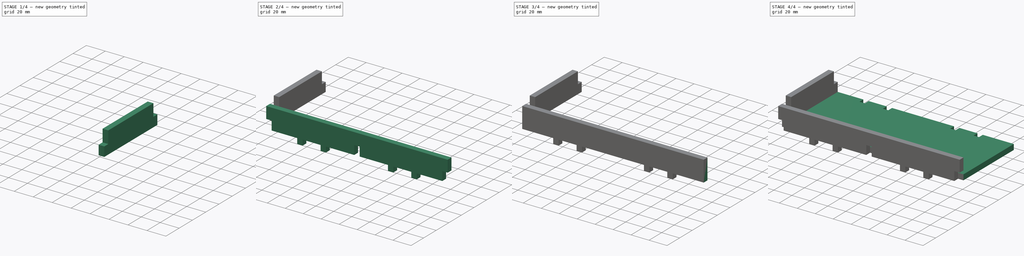
[diagram: build sequence overview — one tinted view per stage of 4, left to right]
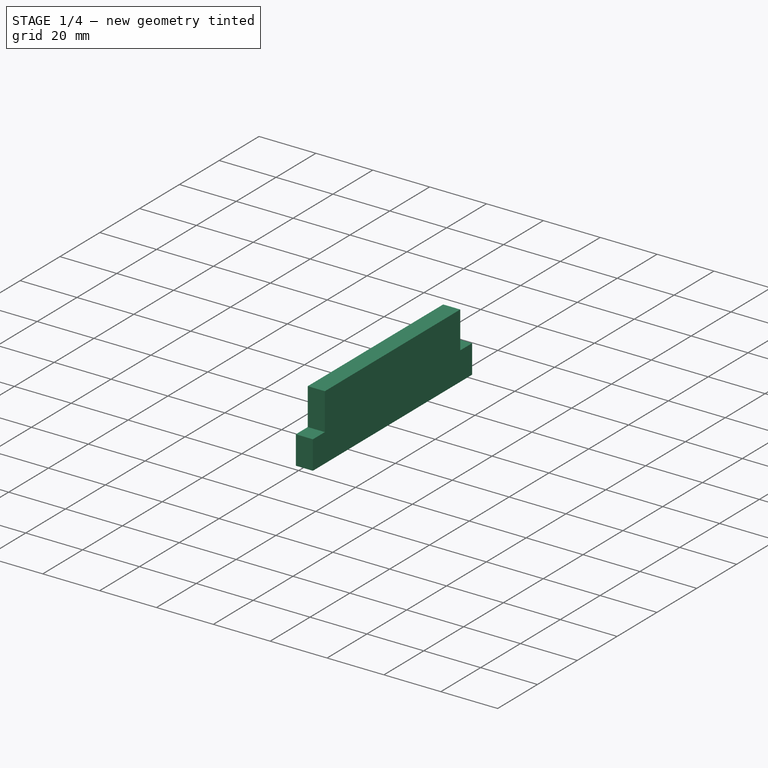
[diagram: stage 1 of 4 — iso view after this stage's code; geometry added in this stage tinted green]
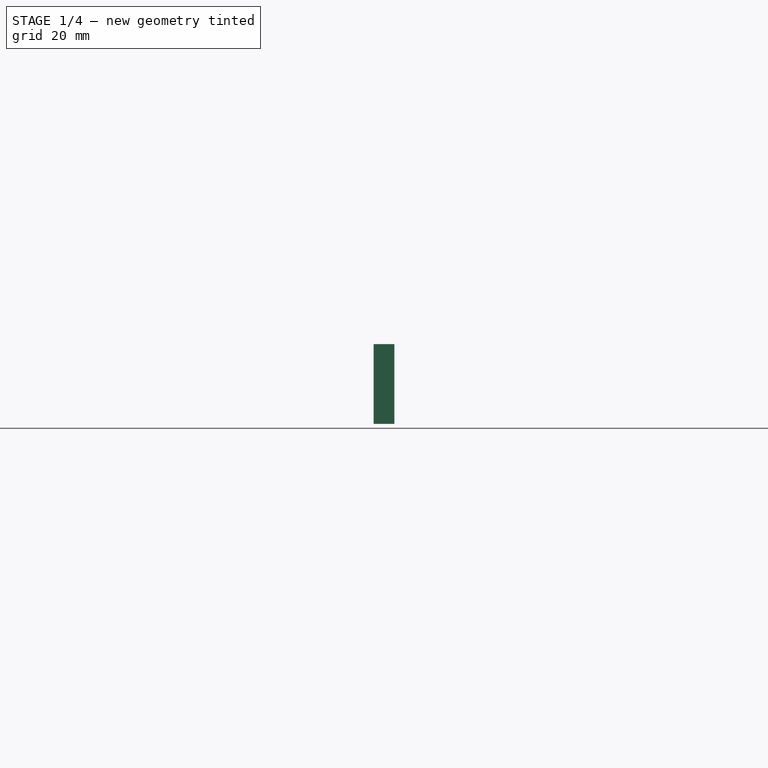
[diagram: stage 1 of 4 — front view after this stage's code; geometry added in this stage tinted green]
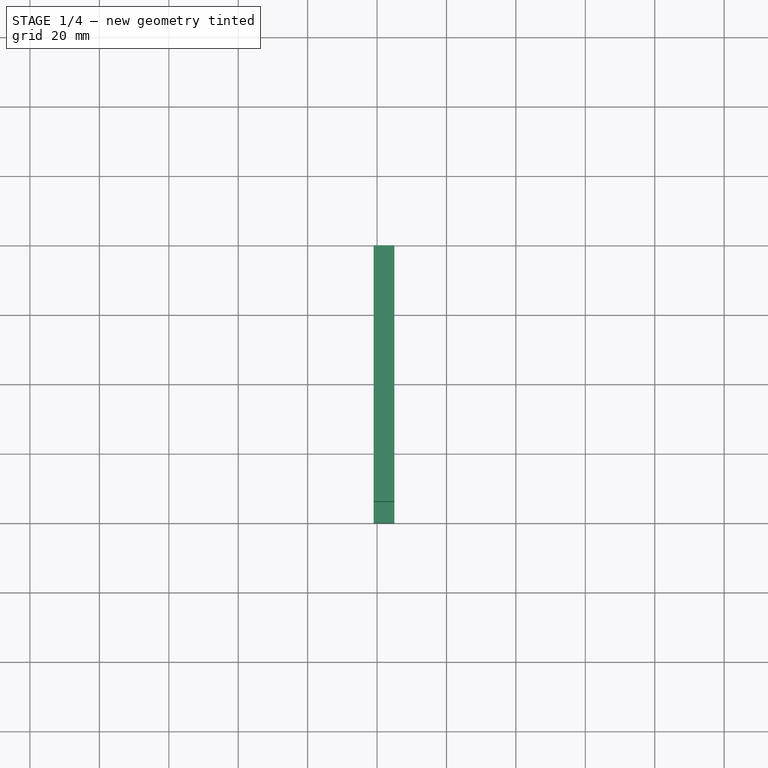
[diagram: stage 1 of 4 — top view after this stage's code; geometry added in this stage tinted green]
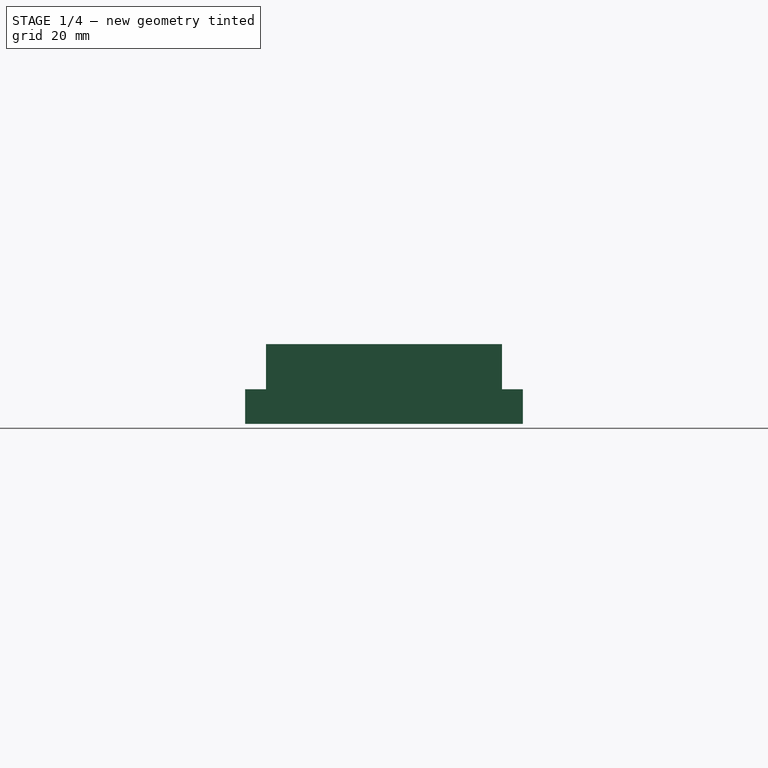
[diagram: stage 1 of 4 — right view after this stage's code; geometry added in this stage tinted green]
FCSTD DOCUMENT  (FreeCAD 0.18R16146 (Git))
Label: brass birmingham card tray
License: All rights reserved
LicenseURL: http://en.wikipedia.org/wiki/All_rights_reserved
objects: Sketcher::SketchObject×9, TechDraw::DrawViewPart×8, PartDesign::Body×6, PartDesign::Pocket×5, PartDesign::Pad×4, Spreadsheet::Sheet×2, PartDesign::FeatureBase×2, App::DocumentObjectGroup×2, TechDraw::DrawSVGTemplate×2, TechDraw::DrawPage×2
note: 35 computed .brp shape members not serialized (recipe doc carries the construction recipe); baked Part::Feature solids carry a one-line shape summary decoded from their .brp

FEATURE [PartDesign::Body] Body001  label="side long"
  Group = -> [Sketch001,Pad001,Sketch002,Pocket]
  Origin = -> Origin001
  Placement = pos=(0,6,6) rot=(0,0,1;0rad)
  Tip = -> Pocket
FEATURE [Sketcher::SketchObject] Sketch003
  MapMode = 5
  Placement = pos=(0,0,0) rot=(0.57735,0.57735,0.57735;2.0944rad)
  Support = -> [YZ_Plane003]
  expr: Constraints[9] = 29mm - my_variables.foam_width
  sketch-geometry (4):
    g0: LineSegment StartX=-40 StartY=23 StartZ=0 EndX=40 EndY=23 EndZ=0
    g1: LineSegment StartX=40 StartY=23 StartZ=0 EndX=40 EndY=0 EndZ=0
    g2: LineSegment StartX=40 StartY=0 StartZ=0 EndX=-40 EndY=0 EndZ=0
    g3: LineSegment StartX=-40 StartY=0 StartZ=0 EndX=-40 EndY=23 EndZ=0
  constraints (11):
    c: Coincident(g0,g1)
    c: Coincident(g1,g2)
    c: Coincident(g2,g3)
    c: Coincident(g3,g0)
    c: Horizontal(g0)
    c: Horizontal(g2)
    c: Vertical(g1)
    c: Vertical(g3)
    c: Distance(g0) = 80
    c: Distance(g1) = 23
    c: Symmetric(g2,g2,g-1)
FEATURE [PartDesign::Pad] Pad002
  Length = 6
  Length2 = 100
  Placement = pos=(0,0,0) rot=(0.57735,0.57735,0.57735;2.0944rad)
  Profile = -> Sketch003
  Type = 0
  expr: Length = my_variables.foam_width
FEATURE [Sketcher::SketchObject] Sketch004
  MapMode = 5
  Placement = pos=(6,-1.3e-15,1.3e-15) rot=(0.57735,0.57735,0.57735;2.0944rad)
  Support = -> [Pad002]
  expr: Constraints[30] = my_variables.foam_width
  expr: Constraints[29] = my_variables.foam_width
  expr: Constraints[9] = Sketch003.Constraints[9]
  expr: Constraints[8] = Sketch003.Constraints[8]
  sketch-geometry (12):
    g0: LineSegment [constr] StartX=-40 StartY=23 StartZ=0 EndX=40 EndY=23 EndZ=0
    g1: LineSegment [constr] StartX=40 StartY=23 StartZ=0 EndX=40 EndY=0 EndZ=0
    g2: LineSegment [constr] StartX=40 StartY=0 StartZ=0 EndX=-40 EndY=0 EndZ=0
    g3: LineSegment [constr] StartX=-40 StartY=0 StartZ=0 EndX=-40 EndY=23 EndZ=0
    g4: LineSegment StartX=-34 StartY=10 StartZ=0 EndX=-40 EndY=10 EndZ=0
    g5: LineSegment StartX=-40 StartY=10 StartZ=0 EndX=-40 EndY=23 EndZ=0
    g6: LineSegment StartX=-40 StartY=23 StartZ=0 EndX=-34 EndY=23 EndZ=0
    g7: LineSegment StartX=-34 StartY=23 StartZ=0 EndX=-34 EndY=10 EndZ=0
    g8: LineSegment StartX=34 StartY=23 StartZ=0 EndX=40 EndY=23 EndZ=0
    g9: LineSegment StartX=40 StartY=23 StartZ=0 EndX=40 EndY=10 EndZ=0
    g10: LineSegment StartX=40 StartY=10 StartZ=0 EndX=34 EndY=10 EndZ=0
    g11: LineSegment StartX=34 StartY=10 StartZ=0 EndX=34 EndY=23 EndZ=0
  constraints (33):
    c: Coincident(g0,g1)
    c: Coincident(g1,g2)
    c: Coincident(g2,g3)
    c: Coincident(g3,g0)
    c: Horizontal(g0)
    c: Horizontal(g2)
    c: Vertical(g1)
    c: Vertical(g3)
    c: Distance(g0) = 80
    c: Distance(g1) = 23
    c: Symmetric(g2,g2,g-1)
    c: Coincident(g4,g5)
    c: Coincident(g5,g6)
    c: Coincident(g6,g7)
    c: Coincident(g7,g4)
    c: Horizontal(g4)
    c: Horizontal(g6)
    c: Vertical(g5)
    c: Vertical(g7)
    c: Coincident(g8,g9)
    c: Coincident(g9,g10)
    c: Coincident(g10,g11)
    c: Coincident(g11,g8)
    c: Horizontal(g8)
    c: Horizontal(g10)
    c: Vertical(g9)
    c: Vertical(g11)
    c: Coincident(g8,g0)
    c: Coincident(g5,g0)
    c: Distance(g4) = 6
    c: Distance(g10) = 6
    c: Distance(g4,g2) = 10
    c: Distance(g9,g1) = 10
FEATURE [PartDesign::Pocket] Pocket001
  BaseFeature = -> Pad002
  Length = 5
  Length2 = 100
  Placement = pos=(0,0,0) rot=(0.57735,0.57735,0.57735;2.0944rad)
  Profile = -> Sketch004
  Type = 1
FEATURE [PartDesign::Body] Body004  label="side small - clone 1"
  BaseFeature = -> Body003
  Group = -> [Clone001]
  Origin = -> Origin004
  Placement = pos=(98,1.3e-14,4e-15) rot=(0,0,1;0rad)
  Tip = -> Clone001
FEATURE [PartDesign::FeatureBase] Clone002
  BaseFeature = -> Body003
  Placement = pos=(-101,40,6) rot=(0,0,1;0rad)
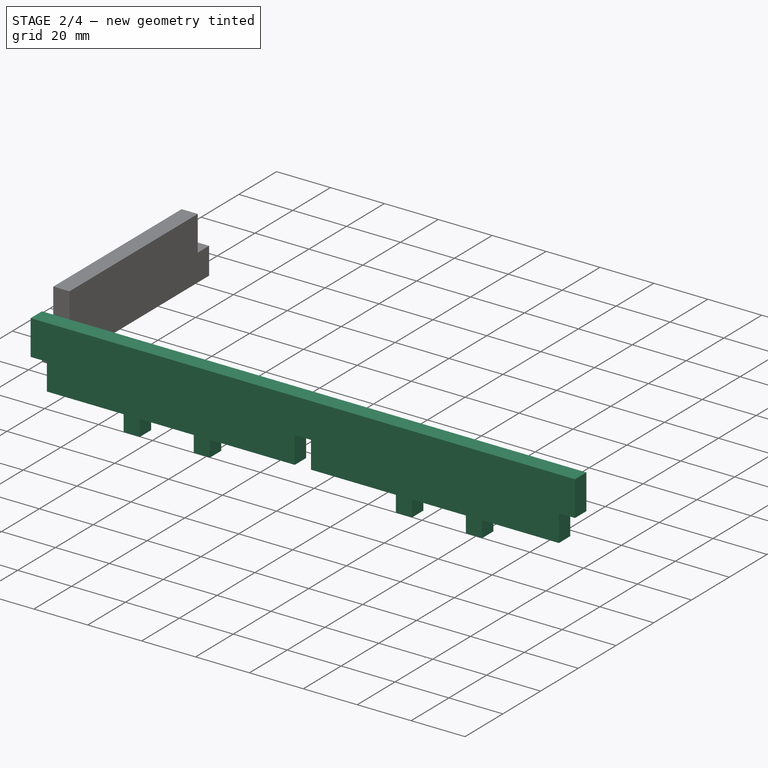
[diagram: stage 2 of 4 — iso view after this stage's code; geometry added in this stage tinted green]
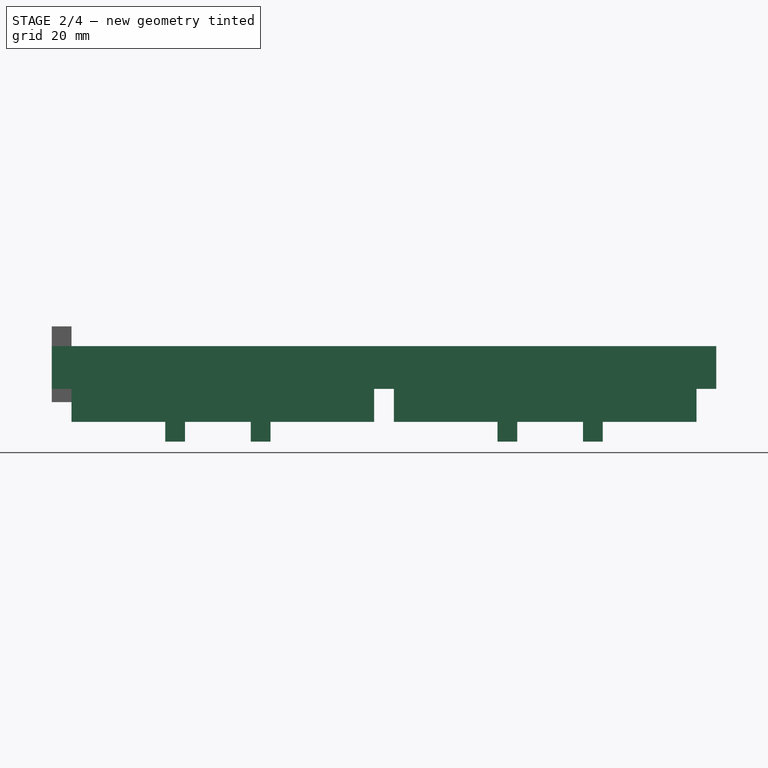
[diagram: stage 2 of 4 — front view after this stage's code; geometry added in this stage tinted green]
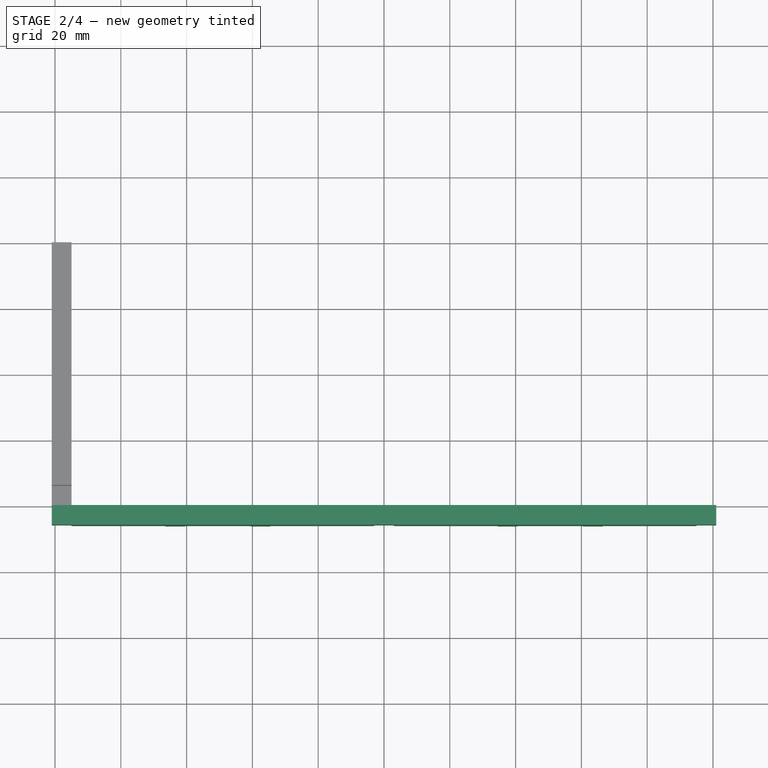
[diagram: stage 2 of 4 — top view after this stage's code; geometry added in this stage tinted green]
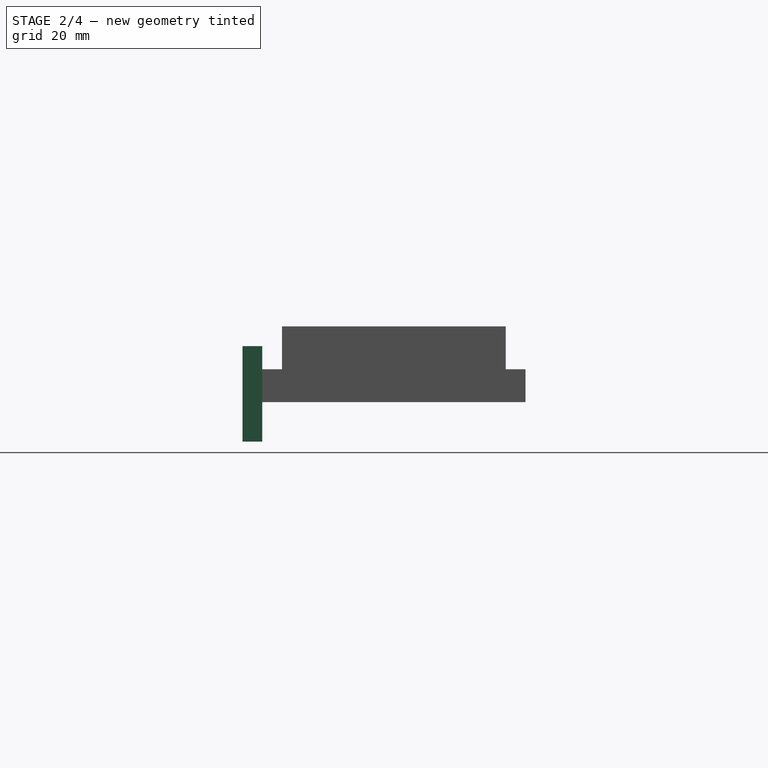
[diagram: stage 2 of 4 — right view after this stage's code; geometry added in this stage tinted green]
FEATURE [PartDesign::Body] Body003  label="side  small"
  Group = -> [Sketch003,Pad002,Sketch004,Pocket001]
  Origin = -> Origin003
  Placement = pos=(-101,40,6) rot=(0,0,1;0rad)
  Tip = -> Pocket001
FEATURE [PartDesign::FeatureBase] Clone001
  BaseFeature = -> Body003
  Placement = pos=(-101,40,6) rot=(0,0,1;0rad)
FEATURE [PartDesign::Body] Body005  label="side small - divider clone 2"
  BaseFeature = -> Body003
  Group = -> [Clone002]
  Origin = -> Origin005
  Placement = pos=(196,1.3e-14,4e-15) rot=(0,0,1;0rad)
  Tip = -> Clone002
FEATURE [App::DocumentObjectGroup] Group001  label="clones"
  Group = -> [Body004,Body005]
FEATURE [Sketcher::SketchObject] Sketch006
  MapMode = 5
  Placement = pos=(0,0,0) rot=(1,0,0;1.5708rad)
  Support = -> [XZ_Plane006]
  expr: Constraints[59] = my_variables.foam_width
  expr: Constraints[53] = my_variables.foam_width
  expr: Constraints[52] = my_variables.foam_width
  expr: Constraints[50] = my_variables.foam_width
  expr: Constraints[49] = my_variables.foam_width
  expr: Constraints[6] = 29mm - my_variables.foam_width
  sketch-geometry (25):
    g0: LineSegment StartX=-101 StartY=23 StartZ=0 EndX=101 EndY=23 EndZ=0
    g1: LineSegment StartX=101 StartY=23 StartZ=0 EndX=101 EndY=0 EndZ=0
    g2: LineSegment StartX=-101 StartY=0 StartZ=0 EndX=-101 EndY=23 EndZ=0
    g3: LineSegment StartX=-101 StartY=0 StartZ=0 EndX=-66.5 EndY=0 EndZ=0
    g4: LineSegment StartX=-66.5 StartY=0 StartZ=0 EndX=-66.5 EndY=-6 EndZ=0
    g5: LineSegment StartX=-66.5 StartY=-6 StartZ=0 EndX=-60.5 EndY=-6 EndZ=0
    g6: LineSegment StartX=-60.5 StartY=-6 StartZ=0 EndX=-60.5 EndY=0 EndZ=0
    g7: LineSegment StartX=-60.5 StartY=0 StartZ=0 EndX=-40.5 EndY=0 EndZ=0
    g8: LineSegment StartX=-40.5 StartY=0 StartZ=0 EndX=-40.5 EndY=-6 EndZ=0
    g9: LineSegment StartX=-40.5 StartY=-6 StartZ=0 EndX=-34.5 EndY=-6 EndZ=0
    g10: LineSegment StartX=-34.5 StartY=-6 StartZ=0 EndX=-34.5 EndY=0 EndZ=0
    g11: LineSegment StartX=34.5 StartY=0 StartZ=0 EndX=34.5 EndY=-6 EndZ=0
    g12: LineSegment StartX=34.5 StartY=-6 StartZ=0 EndX=40.5 EndY=-6 EndZ=0
    g13: LineSegment StartX=40.5 StartY=-6 StartZ=0 EndX=40.5 EndY=0 EndZ=0
    g14: LineSegment StartX=40.5 StartY=0 StartZ=0 EndX=60.5 EndY=0 EndZ=0
    g15: LineSegment StartX=60.5 StartY=0 StartZ=0 EndX=60.5 EndY=-6 EndZ=0
    g16: LineSegment StartX=60.5 StartY=-6 StartZ=0 EndX=66.5 EndY=-6 EndZ=0
    g17: LineSegment StartX=66.5 StartY=-6 StartZ=0 EndX=66.5 EndY=0 EndZ=0
    g18: LineSegment StartX=66.5 StartY=0 StartZ=0 EndX=101 EndY=0 EndZ=0
    g19: LineSegment [constr] StartX=-101 StartY=0 StartZ=0 EndX=0 EndY=0 EndZ=0
    g20: LineSegment [constr] StartX=101 StartY=0 StartZ=0 EndX=0 EndY=0 EndZ=0
    g21: GeomPoint X=-50.5 Y=0 Z=0
    g22: GeomPoint X=50.5 Y=0 Z=0
    g23: LineSegment [constr] StartX=-66.5 StartY=-6 StartZ=0 EndX=66.5 EndY=-6 EndZ=0
    g24: LineSegment StartX=-34.5 StartY=0 StartZ=0 EndX=34.5 EndY=0 EndZ=0
  constraints (65):
    c: Coincident(g0,g1)
    c: Coincident(g2,g0)
    c: Horizontal(g0)
    c: Vertical(g1)
    c: Vertical(g2)
    c: Symmetric(g1,g2,g-1)
    c: Distance(g2) = 23
    c: Distance(g0) = 202
    c: Coincident(g3,g2)
    c: PointOnObject(g3,g-1)
    c: Coincident(g4,g3)
    c: Coincident(g5,g4)
    c: Horizontal(g5)
    c: PointOnObject(g6,g-1)
    c: Coincident(g7,g6)
    c: Horizontal(g7)
    c: Vertical(g8)
    c: Coincident(g9,g8)
    c: Horizontal(g9)
    c: Coincident(g10,g9)
    c: PointOnObject(g10,g-1)
    c: Vertical(g10)
    c: Vertical(g11)
    c: Coincident(g12,g11)
    c: Horizontal(g12)
    c: Vertical(g13)
    c: Coincident(g14,g13)
    c: PointOnObject(g14,g-1)
    c: Coincident(g15,g14)
    c: Horizontal(g16)
    c: Vertical(g17)
    c: Coincident(g18,g17)
    c: Coincident(g18,g1)
    c: Horizontal(g18)
    c: Coincident(g19,g2)
    c: Coincident(g19,g-1)
    c: Coincident(g20,g1)
    c: Coincident(g20,g-1)
    c: Symmetric(g19,g19,g21)
    c: Symmetric(g20,g20,g22)
    c: Symmetric(g7,g7,g21)
    c: Symmetric(g14,g14,g22)
    c: Vertical(g15)
    c: Coincident(g16,g15)
    c: Vertical(g6)
    c: Coincident(g5,g6)
    c: Coincident(g7,g8)
    c: Distance(g7) = 20
    c: Distance(g14) = 20
    c: Distance(g5) = 6
    c: Distance(g9) = 6
    c: Coincident(g12,g13)
    c: Distance(g12) = 6
    c: Distance(g16) = 6
    c: Coincident(g17,g16)
    c: Vertical(g4)
    c: Coincident(g23,g4)
    c: Coincident(g23,g16)
    c: Horizontal(g23)
    c: Distance(g-1,g23) = 6
    c: PointOnObject(g8,g23)
    c: PointOnObject(g11,g23)
    c: Coincident(g24,g10)
    c: Coincident(g24,g11)
    c: Horizontal(g24)
FEATURE [Spreadsheet::Sheet] Spreadsheet001  label="my_variables001"
  cells = A1=foam_width; B1(foam_width)==6mm; A2=lower_height; B2(lower_height)==29mm; A3=upper_height
FEATURE [PartDesign::Pad] Pad003
  Length = 6
  Length2 = 100
  Placement = pos=(0,0,0) rot=(1,0,0;1.5708rad)
  Profile = -> Sketch006
  Type = 0
  expr: Length = my_variables.foam_width
FEATURE [Sketcher::SketchObject] Sketch007
  MapMode = 5
  Placement = pos=(0,-6,-1.3e-15) rot=(1,0,0;1.5708rad)
  Support = -> [Pad003]
  expr: Constraints[94] = Sketch006.Constraints[50]
  expr: Constraints[93] = Sketch006.Constraints[49]
  expr: Constraints[92] = Sketch006.Constraints[48]
  expr: Constraints[91] = Sketch006.Constraints[47]
  expr: Constraints[51] = Sketch006.Constraints[7]
  expr: Constraints[40] = my_variables.foam_width
  expr: Constraints[39] = my_variables.foam_width
  expr: Constraints[37] = my_variables.foam_width
  expr: Constraints[97] = Sketch006.Constraints[53]
  expr: Constraints[96] = Sketch006.Constraints[52]
  expr: Constraints[50] = Sketch006.Constraints[6]
  expr: Constraints[34] = Sketch006.Constraints[7]
  expr: Constraints[103] = Sketch006.Constraints[59]
  expr: Constraints[33] = Sketch006.Constraints[6]
  sketch-geometry (43):
    g0: LineSegment StartX=-101 StartY=10 StartZ=0 EndX=-95 EndY=10 EndZ=0
    g1: LineSegment StartX=-95 StartY=10 StartZ=0 EndX=-95 EndY=0 EndZ=0
    g2: LineSegment StartX=-95 StartY=0 StartZ=0 EndX=-101 EndY=0 EndZ=0
    g3: LineSegment StartX=-101 StartY=0 StartZ=0 EndX=-101 EndY=10 EndZ=0
    g4: LineSegment StartX=95 StartY=10 StartZ=0 EndX=101 EndY=10 EndZ=0
    g5: LineSegment StartX=101 StartY=10 StartZ=0 EndX=101 EndY=0 EndZ=0
    g6: LineSegment StartX=101 StartY=0 StartZ=0 EndX=95 EndY=0 EndZ=0
    g7: LineSegment StartX=95 StartY=0 StartZ=0 EndX=95 EndY=10 EndZ=0
    g8: LineSegment StartX=-3 StartY=10 StartZ=0 EndX=3 EndY=10 EndZ=0
    g9: LineSegment StartX=3 StartY=10 StartZ=0 EndX=3 EndY=0 EndZ=0
    g10: LineSegment StartX=3 StartY=0 StartZ=0 EndX=-3 EndY=0 EndZ=0
    g11: LineSegment StartX=-3 StartY=0 StartZ=0 EndX=-3 EndY=10 EndZ=0
    g12: LineSegment [constr] StartX=-101 StartY=23 StartZ=0 EndX=101 EndY=23 EndZ=0
    g13: LineSegment [constr] StartX=101 StartY=23 StartZ=0 EndX=101 EndY=0 EndZ=0
    g14: LineSegment [constr] StartX=101 StartY=0 StartZ=0 EndX=-101 EndY=0 EndZ=0
    g15: LineSegment [constr] StartX=-101 StartY=0 StartZ=0 EndX=-101 EndY=23 EndZ=0
    g16: LineSegment [constr] StartX=-101 StartY=23 StartZ=0 EndX=101 EndY=23 EndZ=0
    g17: LineSegment [constr] StartX=101 StartY=23 StartZ=0 EndX=101 EndY=0 EndZ=0
    g18: LineSegment [constr] StartX=-101 StartY=0 StartZ=0 EndX=-101 EndY=23 EndZ=0
    g19: LineSegment [constr] StartX=-101 StartY=0 StartZ=0 EndX=-66.5 EndY=0 EndZ=0
    g20: LineSegment [constr] StartX=-66.5 StartY=0 StartZ=0 EndX=-66.5 EndY=-6 EndZ=0
    g21: LineSegment [constr] StartX=-66.5 StartY=-6 StartZ=0 EndX=-60.5 EndY=-6 EndZ=0
    g22: LineSegment [constr] StartX=-60.5 StartY=-6 StartZ=0 EndX=-60.5 EndY=0 EndZ=0
    g23: LineSegment [constr] StartX=-60.5 StartY=0 StartZ=0 EndX=-40.5 EndY=0 EndZ=0
    g24: LineSegment [constr] StartX=-40.5 StartY=0 StartZ=0 EndX=-40.5 EndY=-6 EndZ=0
    g25: LineSegment [constr] StartX=-40.5 StartY=-6 StartZ=0 EndX=-34.5 EndY=-6 EndZ=0
    g26: LineSegment [constr] StartX=-34.5 StartY=-6 StartZ=0 EndX=-34.5 EndY=0 EndZ=0
    g27: LineSegment [constr] StartX=34.5 StartY=0 StartZ=0 EndX=34.5 EndY=-6 EndZ=0
    g28: LineSegment [constr] StartX=34.5 StartY=-6 StartZ=0 EndX=40.5 EndY=-6 EndZ=0
    g29: LineSegment [constr] StartX=40.5 StartY=-6 StartZ=0 EndX=40.5 EndY=0 EndZ=0
    g30: LineSegment [constr] StartX=40.5 StartY=0 StartZ=0 EndX=60.5 EndY=0 EndZ=0
    g31: LineSegment [constr] StartX=60.5 StartY=0 StartZ=0 EndX=60.5 EndY=-6 EndZ=0
    g32: LineSegment [constr] StartX=60.5 StartY=-6 StartZ=0 EndX=66.5 EndY=-6 EndZ=0
    g33: LineSegment [constr] StartX=66.5 StartY=-6 StartZ=0 EndX=66.5 EndY=0 EndZ=0
    g34: LineSegment [constr] StartX=66.5 StartY=0 StartZ=0 EndX=101 EndY=0 EndZ=0
    g35: LineSegment [constr] StartX=-101 StartY=0 StartZ=0 EndX=0 EndY=0 EndZ=0
    g36: LineSegment [constr] StartX=101 StartY=0 StartZ=0 EndX=0 EndY=0 EndZ=0
    g37: GeomPoint X=-50.5 Y=0 Z=0
    g38: GeomPoint X=50.5 Y=0 Z=0
    g39: LineSegment [constr] StartX=-66.5 StartY=-6 StartZ=0 EndX=66.5 EndY=-6 EndZ=0
    g40: LineSegment [constr] StartX=-34.5 StartY=0 StartZ=0 EndX=34.5 EndY=0 EndZ=0
    g41: LineSegment [constr] StartX=-50.5 StartY=0 StartZ=0 EndX=-50.5 EndY=23 EndZ=0
    g42: LineSegment [constr] StartX=50.5 StartY=0 StartZ=0 EndX=50.5 EndY=23 EndZ=0
  constraints (115):
    c: Coincident(g0,g1)
    c: Coincident(g1,g2)
    c: Coincident(g2,g3)
    c: Coincident(g3,g0)
    c: Horizontal(g0)
    c: Horizontal(g2)
    c: Vertical(g1)
    c: Vertical(g3)
    c: Coincident(g4,g5)
    c: Coincident(g5,g6)
    c: Coincident(g6,g7)
    c: Coincident(g7,g4)
    c: Horizontal(g4)
    c: Horizontal(g6)
    c: Vertical(g5)
    c: Vertical(g7)
    c: Coincident(g8,g9)
    c: Coincident(g9,g10)
    c: Coincident(g10,g11)
    c: Coincident(g11,g8)
    c: Horizontal(g8)
    c: Horizontal(g10)
    c: Vertical(g9)
    c: Vertical(g11)
    c: Coincident(g12,g13)
    c: Coincident(g13,g14)
    c: Coincident(g14,g15)
    c: Coincident(g15,g12)
    c: Horizontal(g12)
    c: Horizontal(g14)
    c: Vertical(g13)
    c: Vertical(g15)
    c: Symmetric(g14,g14,g-1)
    c: Distance(g15) = 23
    c: Distance(g12) = 202
    c: Coincident(g2,g14)
    c: Coincident(g5,g13)
    c: Distance(g2) = 6
    c: Symmetric(g10,g10,g-1)
    c: Distance(g8) = 6
    c: Distance(g4) = 6
    c: Distance(g1) = 10
    c: Distance(g11) = 10
    c: Distance(g7) = 10
    c: Coincident(g16,g17)
    c: Coincident(g18,g16)
    c: Horizontal(g16)
    c: Vertical(g17)
    c: Vertical(g18)
    c: Symmetric(g17,g18,g-1)
    c: Distance(g18) = 23
    c: Distance(g16) = 202
    c: Coincident(g19,g18)
    c: PointOnObject(g19,g-1)
    c: Coincident(g20,g19)
    c: Coincident(g21,g20)
    c: Horizontal(g21)
    c: PointOnObject(g22,g-1)
    c: Coincident(g23,g22)
    c: Horizontal(g23)
    c: Vertical(g24)
    c: Coincident(g25,g24)
    c: Horizontal(g25)
    c: Coincident(g26,g25)
    c: PointOnObject(g26,g-1)
    c: Vertical(g26)
    c: Vertical(g27)
    c: Coincident(g28,g27)
    c: Horizontal(g28)
    c: Vertical(g29)
    c: Coincident(g30,g29)
    c: PointOnObject(g30,g-1)
    c: Coincident(g31,g30)
    c: Horizontal(g32)
    c: Vertical(g33)
    c: Coincident(g34,g33)
    c: Coincident(g34,g17)
    c: Horizontal(g34)
    c: Coincident(g35,g18)
    c: Coincident(g35,g-1)
    c: Coincident(g36,g17)
    c: Coincident(g36,g-1)
    c: Symmetric(g35,g35,g37)
    c: Symmetric(g36,g36,g38)
    c: Symmetric(g23,g23,g37)
    c: Symmetric(g30,g30,g38)
    c: Vertical(g31)
    c: Coincident(g32,g31)
    c: Vertical(g22)
    c: Coincident(g21,g22)
    c: Coincident(g23,g24)
    c: Distance(g23) = 20
    c: Distance(g30) = 20
    c: Distance(g21) = 6
    c: Distance(g25) = 6
    c: Coincident(g28,g29)
    c: Distance(g28) = 6
    c: Distance(g32) = 6
    c: Coincident(g33,g32)
    c: Vertical(g20)
    c: Coincident(g39,g20)
    c: Coincident(g39,g32)
    c: Horizontal(g39)
    c: Distance(g-1,g39) = 6
    c: PointOnObject(g24,g39)
    c: PointOnObject(g27,g39)
    c: Coincident(g40,g26)
    c: Coincident(g40,g27)
    c: Horizontal(g40)
    c: Coincident(g41,g37)
    c: PointOnObject(g41,g12)
    c: Vertical(g41)
    c: Coincident(g42,g38)
    c: PointOnObject(g42,g12)
    c: Vertical(g42)
FEATURE [PartDesign::Pocket] Pocket003
  BaseFeature = -> Pad003
  Length = 5
  Length2 = 100
  Placement = pos=(0,0,0) rot=(1,0,0;1.5708rad)
  Profile = -> Sketch007
  Type = 1
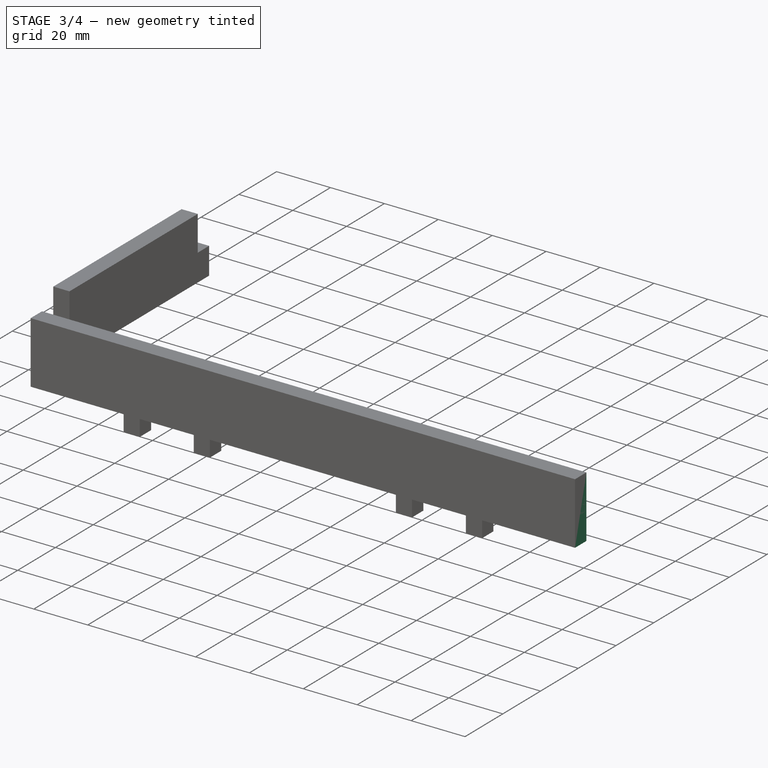
[diagram: stage 3 of 4 — iso view after this stage's code; geometry added in this stage tinted green]
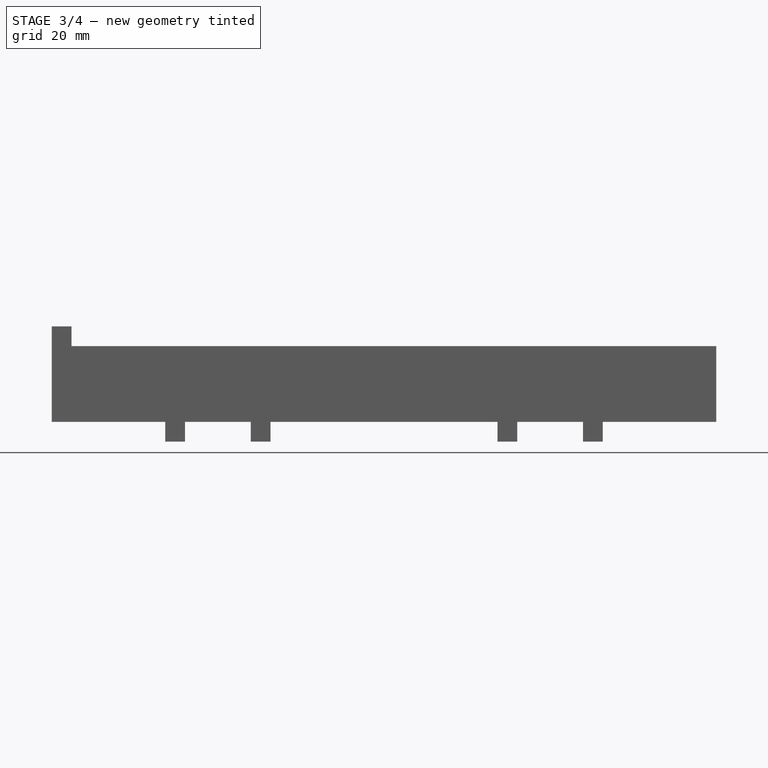
[diagram: stage 3 of 4 — front view after this stage's code; geometry added in this stage tinted green]
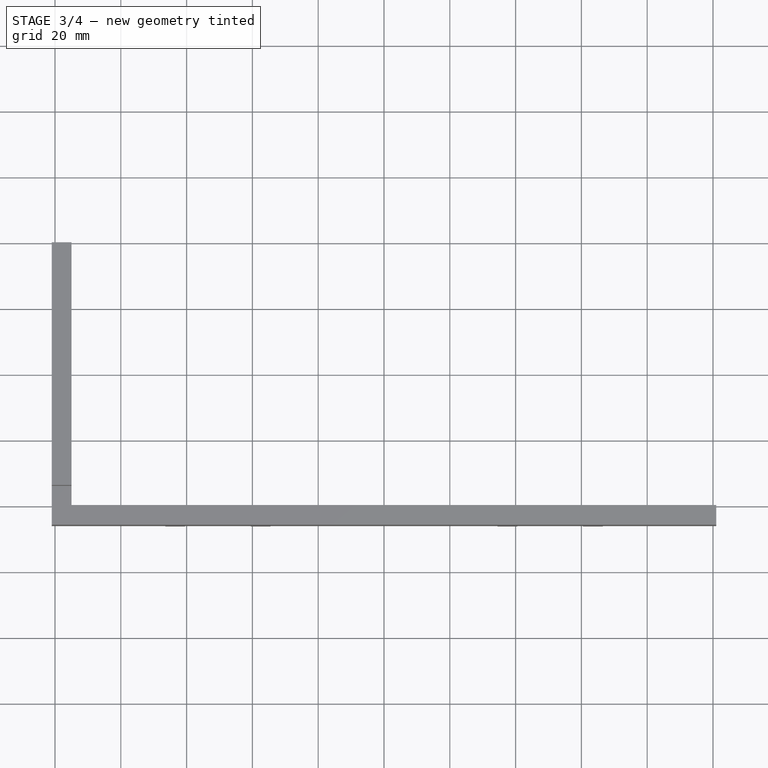
[diagram: stage 3 of 4 — top view after this stage's code; geometry added in this stage tinted green]
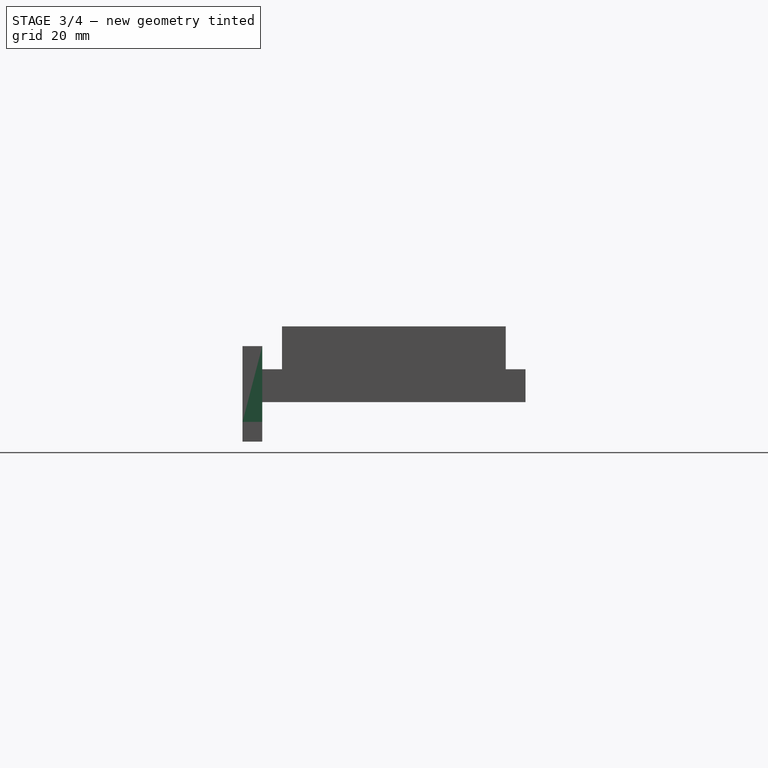
[diagram: stage 3 of 4 — right view after this stage's code; geometry added in this stage tinted green]
FEATURE [Sketcher::SketchObject] Sketch001
  MapMode = 5
  Placement = pos=(0,0,0) rot=(1,0,0;1.5708rad)
  Support = -> [XZ_Plane001]
  expr: Constraints[9] = 29mm - my_variables.foam_width
  sketch-geometry (4):
    g0: LineSegment StartX=-101 StartY=23 StartZ=0 EndX=101 EndY=23 EndZ=0
    g1: LineSegment StartX=101 StartY=23 StartZ=0 EndX=101 EndY=0 EndZ=0
    g2: LineSegment StartX=101 StartY=0 StartZ=0 EndX=-101 EndY=0 EndZ=0
    g3: LineSegment StartX=-101 StartY=0 StartZ=0 EndX=-101 EndY=23 EndZ=0
  constraints (11):
    c: Coincident(g0,g1)
    c: Coincident(g1,g2)
    c: Coincident(g2,g3)
    c: Coincident(g3,g0)
    c: Horizontal(g0)
    c: Horizontal(g2)
    c: Vertical(g1)
    c: Vertical(g3)
    c: Symmetric(g2,g2,g-1)
    c: Distance(g3) = 23
    c: Distance(g0) = 202
FEATURE [PartDesign::Pad] Pad001
  Length = 6
  Length2 = 100
  Placement = pos=(0,0,0) rot=(1,0,0;1.5708rad)
  Profile = -> Sketch001
  Type = 0
  expr: Length = my_variables.foam_width
FEATURE [Sketcher::SketchObject] Sketch008
  MapMode = 5
  Placement = pos=(0,-6,-1.3e-15) rot=(1,0,0;1.5708rad)
  Support = -> [Pocket003]
  expr: Constraints[52] = Sketch006.Constraints[53]
  expr: Constraints[48] = Sketch006.Constraints[49]
  expr: Constraints[49] = Sketch006.Constraints[50]
  expr: Constraints[58] = Sketch006.Constraints[59]
  expr: Constraints[51] = Sketch006.Constraints[52]
  expr: Constraints[47] = Sketch006.Constraints[48]
  expr: Constraints[46] = Sketch006.Constraints[47]
  expr: Constraints[7] = Sketch006.Constraints[7]
  expr: Constraints[6] = Sketch006.Constraints[6]
  sketch-geometry (35):
    g0: LineSegment [constr] StartX=-101 StartY=23 StartZ=0 EndX=101 EndY=23 EndZ=0
    g1: LineSegment [constr] StartX=101 StartY=23 StartZ=0 EndX=101 EndY=0 EndZ=0
    g2: LineSegment [constr] StartX=-101 StartY=0 StartZ=0 EndX=-101 EndY=23 EndZ=0
    g3: LineSegment [constr] StartX=-101 StartY=0 StartZ=0 EndX=-66.5 EndY=0 EndZ=0
    g4: LineSegment [constr] StartX=-66.5 StartY=0 StartZ=0 EndX=-66.5 EndY=-6 EndZ=0
    g5: LineSegment [constr] StartX=-66.5 StartY=-6 StartZ=0 EndX=-60.5 EndY=-6 EndZ=0
    g6: LineSegment [constr] StartX=-60.5 StartY=-6 StartZ=0 EndX=-60.5 EndY=0 EndZ=0
    g7: LineSegment [constr] StartX=-60.5 StartY=0 StartZ=0 EndX=-40.5 EndY=0 EndZ=0
    g8: LineSegment [constr] StartX=-40.5 StartY=0 StartZ=0 EndX=-40.5 EndY=-6 EndZ=0
    g9: LineSegment [constr] StartX=-40.5 StartY=-6 StartZ=0 EndX=-34.5 EndY=-6 EndZ=0
    g10: LineSegment [constr] StartX=-34.5 StartY=-6 StartZ=0 EndX=-34.5 EndY=0 EndZ=0
    g11: LineSegment [constr] StartX=34.5 StartY=0 StartZ=0 EndX=34.5 EndY=-6 EndZ=0
    g12: LineSegment [constr] StartX=34.5 StartY=-6 StartZ=0 EndX=40.5 EndY=-6 EndZ=0
    g13: LineSegment [constr] StartX=40.5 StartY=-6 StartZ=0 EndX=40.5 EndY=0 EndZ=0
    g14: LineSegment [constr] StartX=40.5 StartY=0 StartZ=0 EndX=60.5 EndY=0 EndZ=0
    g15: LineSegment [constr] StartX=60.5 StartY=0 StartZ=0 EndX=60.5 EndY=-6 EndZ=0
    g16: LineSegment [constr] StartX=60.5 StartY=-6 StartZ=0 EndX=66.5 EndY=-6 EndZ=0
    g17: LineSegment [constr] StartX=66.5 StartY=-6 StartZ=0 EndX=66.5 EndY=0 EndZ=0
    g18: LineSegment [constr] StartX=66.5 StartY=0 StartZ=0 EndX=101 EndY=0 EndZ=0
    g19: LineSegment [constr] StartX=-101 StartY=0 StartZ=0 EndX=0 EndY=0 EndZ=0
    g20: LineSegment [constr] StartX=101 StartY=0 StartZ=0 EndX=0 EndY=0 EndZ=0
    g21: GeomPoint X=-50.5 Y=0 Z=0
    g22: GeomPoint X=50.5 Y=0 Z=0
    g23: LineSegment [constr] StartX=-66.5 StartY=-6 StartZ=0 EndX=66.5 EndY=-6 EndZ=0
    g24: LineSegment [constr] StartX=-34.5 StartY=0 StartZ=0 EndX=34.5 EndY=0 EndZ=0
    g25: LineSegment [constr] StartX=-50.5 StartY=0 StartZ=0 EndX=-50.5 EndY=23 EndZ=0
    g26: LineSegment [constr] StartX=50.5 StartY=0 StartZ=0 EndX=50.5 EndY=23 EndZ=0
    g27: LineSegment StartX=-70.5 StartY=23 StartZ=0 EndX=-30.5 EndY=23 EndZ=0
    g28: LineSegment StartX=30.5 StartY=23 StartZ=0 EndX=70.5 EndY=23 EndZ=0
    g29: LineSegment StartX=-70.5 StartY=23 StartZ=0 EndX=-60.5 EndY=0 EndZ=0
    g30: LineSegment StartX=-60.5 StartY=0 StartZ=0 EndX=-40.5 EndY=0 EndZ=0
    g31: LineSegment StartX=-40.5 StartY=0 StartZ=0 EndX=-30.5 EndY=23 EndZ=0
    g32: LineSegment StartX=30.5 StartY=23 StartZ=0 EndX=40.5 EndY=0 EndZ=0
    g33: LineSegment StartX=40.5 StartY=0 StartZ=0 EndX=60.5 EndY=0 EndZ=0
    g34: LineSegment StartX=70.5 StartY=23 StartZ=0 EndX=60.5 EndY=0 EndZ=0
  constraints (89):
    c: Coincident(g0,g1)
    c: Coincident(g2,g0)
    c: Horizontal(g0)
    c: Vertical(g1)
    c: Vertical(g2)
    c: Symmetric(g1,g2,g-1)
    c: Distance(g2) = 23
    c: Distance(g0) = 202
    c: Coincident(g3,g2)
    c: PointOnObject(g3,g-1)
    c: Coincident(g4,g3)
    c: Coincident(g5,g4)
    c: Horizontal(g5)
    c: PointOnObject(g6,g-1)
    c: Coincident(g7,g6)
    c: Vertical(g8)
    c: Coincident(g9,g8)
    c: Horizontal(g9)
    c: Coincident(g10,g9)
    c: PointOnObject(g10,g-1)
    c: Vertical(g10)
    c: Vertical(g11)
    c: Coincident(g12,g11)
    c: Horizontal(g12)
    c: Vertical(g13)
    c: Coincident(g14,g13)
    c: PointOnObject(g14,g-1)
    c: Coincident(g15,g14)
    c: Horizontal(g16)
    c: Vertical(g17)
    c: Coincident(g18,g17)
    c: Coincident(g18,g1)
    c: Horizontal(g18)
    c: Coincident(g19,g2)
    c: Coincident(g19,g-1)
    c: Coincident(g20,g1)
    c: Coincident(g20,g-1)
    c: Symmetric(g19,g19,g21)
    c: Symmetric(g20,g20,g22)
    c: Symmetric(g7,g7,g21)
    c: Symmetric(g14,g14,g22)
    c: Vertical(g15)
    c: Coincident(g16,g15)
    c: Vertical(g6)
    c: Coincident(g5,g6)
    c: Coincident(g7,g8)
    c: Distance(g7) = 20
    c: Distance(g14) = 20
    c: Distance(g5) = 6
    c: Distance(g9) = 6
    c: Coincident(g12,g13)
    c: Distance(g12) = 6
    c: Distance(g16) = 6
    c: Coincident(g17,g16)
    c: Vertical(g4)
    c: Coincident(g23,g4)
    c: Coincident(g23,g16)
    c: Horizontal(g23)
    c: Distance(g-1,g23) = 6
    c: PointOnObject(g8,g23)
    c: PointOnObject(g11,g23)
    c: Coincident(g24,g10)
    c: Coincident(g24,g11)
    c: Horizontal(g24)
    c: Coincident(g25,g21)
    c: PointOnObject(g25,g0)
    c: Vertical(g25)
    c: Coincident(g26,g22)
    c: PointOnObject(g26,g0)
    c: Vertical(g26)
    c: Horizontal(g27)
    c: Horizontal(g28)
    c: Symmetric(g27,g27,g25)
    c: Symmetric(g28,g28,g26)
    c: Distance(g27) = 40
    c: Distance(g28) = 40
    c: Coincident(g29,g27)
    c: Coincident(g29,g6)
    c: Coincident(g30,g29)
    c: Coincident(g30,g7)
    c: Horizontal(g30)
    c: Coincident(g31,g30)
    c: Coincident(g31,g27)
    c: Coincident(g32,g28)
    c: Coincident(g32,g13)
    c: Coincident(g33,g32)
    c: Coincident(g33,g14)
    c: Coincident(g34,g28)
    c: Coincident(g34,g33)
FEATURE [PartDesign::Pocket] Pocket004
  BaseFeature = -> Pocket003
  Length = 5.9
  Length2 = 100
  Placement = pos=(0,0,0) rot=(1,0,0;1.5708rad)
  Profile = -> Sketch008
  Type = 0
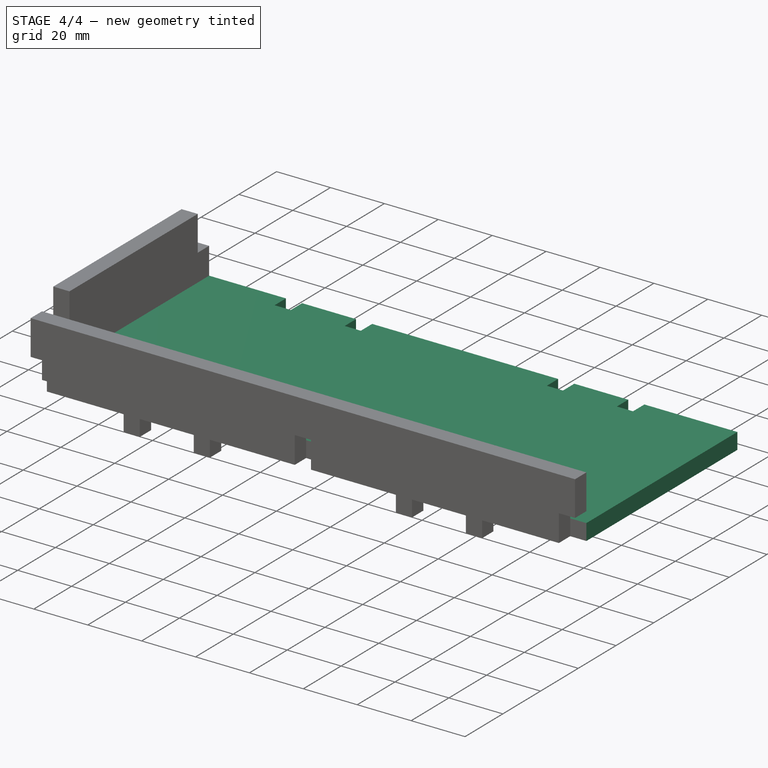
[diagram: stage 4 of 4 — iso view after this stage's code; geometry added in this stage tinted green]
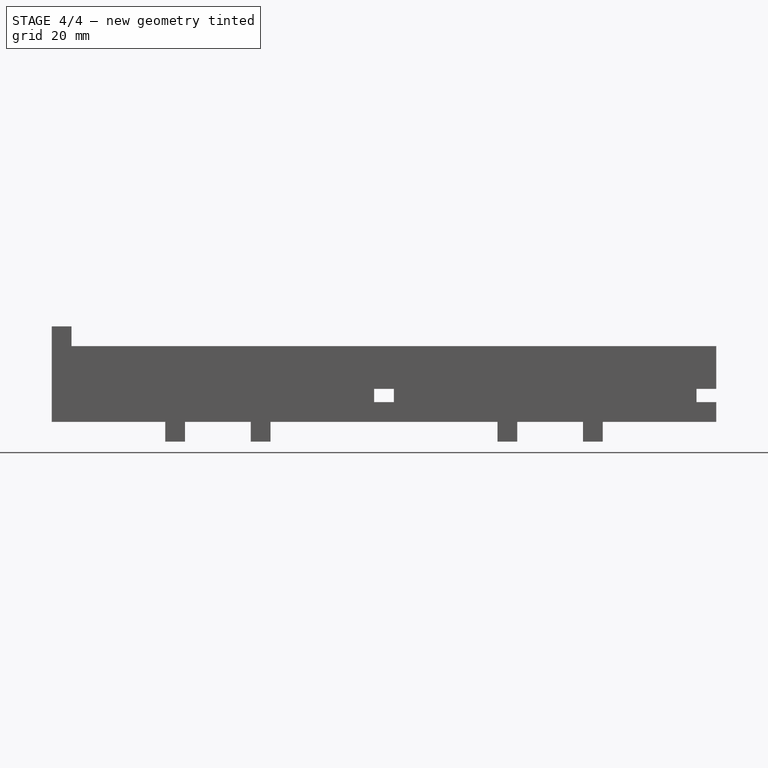
[diagram: stage 4 of 4 — front view after this stage's code; geometry added in this stage tinted green]
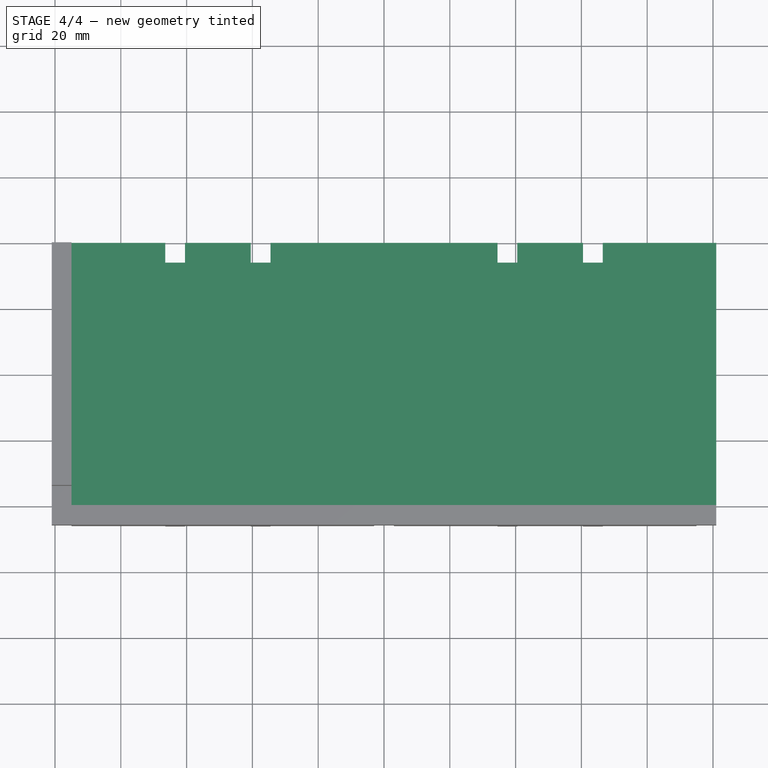
[diagram: stage 4 of 4 — top view after this stage's code; geometry added in this stage tinted green]
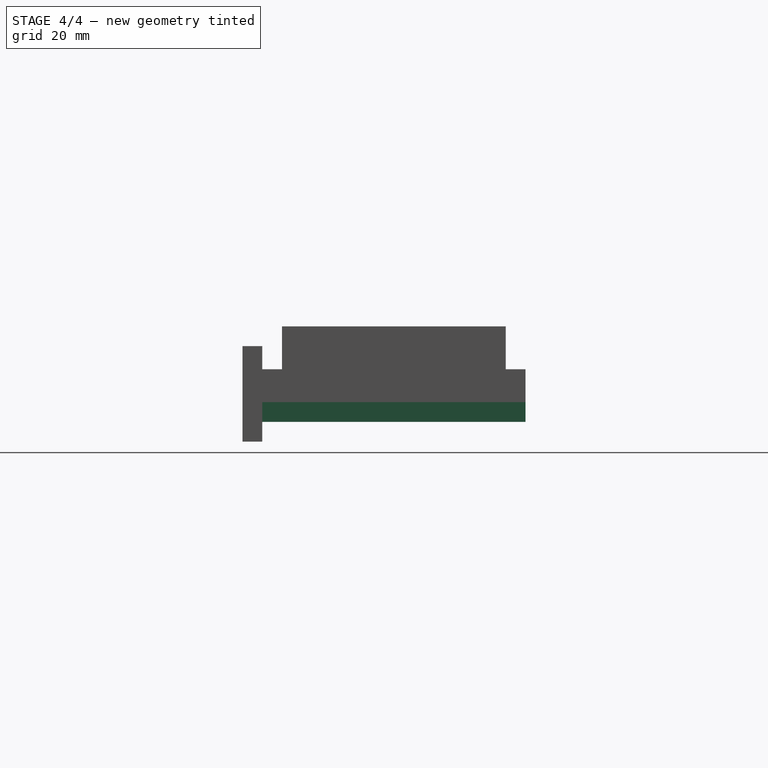
[diagram: stage 4 of 4 — right view after this stage's code; geometry added in this stage tinted green]
FEATURE [Spreadsheet::Sheet] Spreadsheet  label="my_variables"
  cells = A1=foam_width; B1(foam_width)==6mm; A2=lower_height; B2(lower_height)==29mm; A3=upper_height
FEATURE [Sketcher::SketchObject] Sketch
  MapMode = 5
  Support = -> [XY_Plane]
  sketch-geometry (4):
    g0: LineSegment StartX=-101 StartY=80 StartZ=0 EndX=101 EndY=80 EndZ=0
    g1: LineSegment StartX=101 StartY=80 StartZ=0 EndX=101 EndY=0 EndZ=0
    g2: LineSegment StartX=101 StartY=0 StartZ=0 EndX=-101 EndY=0 EndZ=0
    g3: LineSegment StartX=-101 StartY=0 StartZ=0 EndX=-101 EndY=80 EndZ=0
  constraints (11):
    c: Coincident(g0,g1)
    c: Coincident(g1,g2)
    c: Coincident(g2,g3)
    c: Coincident(g3,g0)
    c: Horizontal(g0)
    c: Horizontal(g2)
    c: Vertical(g1)
    c: Vertical(g3)
    c: Symmetric(g2,g2,g-1)
    c: Distance(g3) = 80
    c: Distance(g2) = 202
FEATURE [PartDesign::Pad] Pad
  Length = 6
  Length2 = 100
  Profile = -> Sketch
  Type = 0
  expr: Length = my_variables.foam_width
FEATURE [Sketcher::SketchObject] Sketch002
  MapMode = 5
  Placement = pos=(0,-6,2.7e-15) rot=(1,0,0;1.5708rad)
  Support = -> [Pad001]
  expr: Constraints[40] = my_variables.foam_width
  expr: Constraints[39] = my_variables.foam_width
  expr: Constraints[37] = my_variables.foam_width
  expr: Constraints[34] = Sketch001.Constraints[10]
  expr: Constraints[33] = Sketch001.Constraints[9]
  sketch-geometry (16):
    g0: LineSegment StartX=-101 StartY=10 StartZ=0 EndX=-95 EndY=10 EndZ=0
    g1: LineSegment StartX=-95 StartY=10 StartZ=0 EndX=-95 EndY=0 EndZ=0
    g2: LineSegment StartX=-95 StartY=0 StartZ=0 EndX=-101 EndY=0 EndZ=0
    g3: LineSegment StartX=-101 StartY=0 StartZ=0 EndX=-101 EndY=10 EndZ=0
    g4: LineSegment StartX=95 StartY=10 StartZ=0 EndX=101 EndY=10 EndZ=0
    g5: LineSegment StartX=101 StartY=10 StartZ=0 EndX=101 EndY=0 EndZ=0
    g6: LineSegment StartX=101 StartY=0 StartZ=0 EndX=95 EndY=0 EndZ=0
    g7: LineSegment StartX=95 StartY=0 StartZ=0 EndX=95 EndY=10 EndZ=0
    g8: LineSegment StartX=-3 StartY=10 StartZ=0 EndX=3 EndY=10 EndZ=0
    g9: LineSegment StartX=3 StartY=10 StartZ=0 EndX=3 EndY=0 EndZ=0
    g10: LineSegment StartX=3 StartY=0 StartZ=0 EndX=-3 EndY=0 EndZ=0
    g11: LineSegment StartX=-3 StartY=0 StartZ=0 EndX=-3 EndY=10 EndZ=0
    g12: LineSegment [constr] StartX=-101 StartY=23 StartZ=0 EndX=101 EndY=23 EndZ=0
    g13: LineSegment [constr] StartX=101 StartY=23 StartZ=0 EndX=101 EndY=0 EndZ=0
    g14: LineSegment [constr] StartX=101 StartY=0 StartZ=0 EndX=-101 EndY=0 EndZ=0
    g15: LineSegment [constr] StartX=-101 StartY=0 StartZ=0 EndX=-101 EndY=23 EndZ=0
  constraints (44):
    c: Coincident(g0,g1)
    c: Coincident(g1,g2)
    c: Coincident(g2,g3)
    c: Coincident(g3,g0)
    c: Horizontal(g0)
    c: Horizontal(g2)
    c: Vertical(g1)
    c: Vertical(g3)
    c: Coincident(g4,g5)
    c: Coincident(g5,g6)
    c: Coincident(g6,g7)
    c: Coincident(g7,g4)
    c: Horizontal(g4)
    c: Horizontal(g6)
    c: Vertical(g5)
    c: Vertical(g7)
    c: Coincident(g8,g9)
    c: Coincident(g9,g10)
    c: Coincident(g10,g11)
    c: Coincident(g11,g8)
    c: Horizontal(g8)
    c: Horizontal(g10)
    c: Vertical(g9)
    c: Vertical(g11)
    c: Coincident(g12,g13)
    c: Coincident(g13,g14)
    c: Coincident(g14,g15)
    c: Coincident(g15,g12)
    c: Horizontal(g12)
    c: Horizontal(g14)
    c: Vertical(g13)
    c: Vertical(g15)
    c: Symmetric(g14,g14,g-1)
    c: Distance(g15) = 23
    c: Distance(g12) = 202
    c: Coincident(g2,g14)
    c: Coincident(g5,g13)
    c: Distance(g2) = 6
    c: Symmetric(g10,g10,g-1)
    c: Distance(g8) = 6
    c: Distance(g4) = 6
    c: Distance(g1) = 10
    c: Distance(g11) = 10
    c: Distance(g7) = 10
FEATURE [PartDesign::Pocket] Pocket
  BaseFeature = -> Pad001
  Length = 5
  Length2 = 100
  Placement = pos=(0,0,0) rot=(1,0,0;1.5708rad)
  Profile = -> Sketch002
  Type = 1
FEATURE [PartDesign::Body] Body006  label="side long - with cutouts"
  Group = -> [Sketch006,Pad003,Sketch007,Pocket003,Sketch008,Pocket004]
  Origin = -> Origin006
  Placement = pos=(-2.84e-14,80,6) rot=(0,0,1;0rad)
  Tip = -> Pocket004
FEATURE [Sketcher::SketchObject] Sketch009
  MapMode = 5
  Placement = pos=(0,0,6) rot=(0,0,1;0rad)
  Support = -> [Pad]
  expr: Constraints[61] = my_variables.foam_width
  expr: Constraints[62] = my_variables.foam_width
  expr: Constraints[60] = my_variables.foam_width
  expr: Constraints[59] = my_variables.foam_width
  expr: Constraints[52] = my_variables.foam_width
  expr: Constraints[10] = Sketch.Constraints[10]
  expr: Constraints[9] = Sketch.Constraints[9]
  sketch-geometry (26):
    g0: LineSegment [constr] StartX=-101 StartY=80 StartZ=0 EndX=101 EndY=80 EndZ=0
    g1: LineSegment [constr] StartX=101 StartY=80 StartZ=0 EndX=101 EndY=0 EndZ=0
    g2: LineSegment [constr] StartX=101 StartY=0 StartZ=0 EndX=-101 EndY=0 EndZ=0
    g3: LineSegment [constr] StartX=-101 StartY=0 StartZ=0 EndX=-101 EndY=80 EndZ=0
    g4: GeomPoint X=5.3e-15 Y=80 Z=0
    g5: GeomPoint X=-50.5 Y=80 Z=0
    g6: LineSegment [constr] StartX=5.3e-15 StartY=80 StartZ=0 EndX=-101 EndY=80 EndZ=0
    g7: LineSegment [constr] StartX=101 StartY=80 StartZ=0 EndX=0 EndY=80 EndZ=0
    g8: GeomPoint X=50.5 Y=80 Z=0
    g9: LineSegment StartX=-60.5 StartY=74 StartZ=0 EndX=-66.5 EndY=74 EndZ=0
    g10: LineSegment StartX=-66.5 StartY=74 StartZ=0 EndX=-66.5 EndY=80 EndZ=0
    g11: LineSegment StartX=-66.5 StartY=80 StartZ=0 EndX=-60.5 EndY=80 EndZ=0
    g12: LineSegment StartX=-60.5 StartY=80 StartZ=0 EndX=-60.5 EndY=74 EndZ=0
    g13: LineSegment StartX=-40.5 StartY=74 StartZ=0 EndX=-34.5 EndY=74 EndZ=0
    g14: LineSegment StartX=-34.5 StartY=74 StartZ=0 EndX=-34.5 EndY=80 EndZ=0
    g15: LineSegment StartX=-34.5 StartY=80 StartZ=0 EndX=-40.5 EndY=80 EndZ=0
    g16: LineSegment StartX=-40.5 StartY=80 StartZ=0 EndX=-40.5 EndY=74 EndZ=0
    g17: LineSegment StartX=34.5 StartY=74 StartZ=0 EndX=40.5 EndY=74 EndZ=0
    g18: LineSegment StartX=40.5 StartY=74 StartZ=0 EndX=40.5 EndY=80 EndZ=0
    g19: LineSegment StartX=40.5 StartY=80 StartZ=0 EndX=34.5 EndY=80 EndZ=0
    g20: LineSegment StartX=34.5 StartY=80 StartZ=0 EndX=34.5 EndY=74 EndZ=0
    g21: LineSegment StartX=60.5 StartY=74 StartZ=0 EndX=66.5 EndY=74 EndZ=0
    g22: LineSegment StartX=66.5 StartY=74 StartZ=0 EndX=66.5 EndY=80 EndZ=0
    g23: LineSegment StartX=66.5 StartY=80 StartZ=0 EndX=60.5 EndY=80 EndZ=0
    g24: LineSegment StartX=60.5 StartY=80 StartZ=0 EndX=60.5 EndY=74 EndZ=0
    g25: LineSegment [constr] StartX=-101 StartY=74 StartZ=0 EndX=101 EndY=74 EndZ=0
  constraints (68):
    c: Coincident(g0,g1)
    c: Coincident(g1,g2)
    c: Coincident(g2,g3)
    c: Coincident(g3,g0)
    c: Horizontal(g0)
    c: Horizontal(g2)
    c: Vertical(g1)
    c: Vertical(g3)
    c: Symmetric(g2,g2,g-1)
    c: Distance(g3) = 80
    c: Distance(g2) = 202
    c: Symmetric(g0,g0,g4)
    c: Coincident(g6,g4)
    c: Coincident(g6,g0)
    c: Symmetric(g6,g6,g5)
    c: Coincident(g7,g0)
    c: Coincident(g7,g4)
    c: Symmetric(g7,g7,g8)
    c: Coincident(g9,g10)
    c: Coincident(g10,g11)
    c: Coincident(g11,g12)
    c: Coincident(g12,g9)
    c: Horizontal(g9)
    c: Horizontal(g11)
    c: Vertical(g10)
    c: Vertical(g12)
    c: Coincident(g13,g14)
    c: Coincident(g14,g15)
    c: Coincident(g15,g16)
    c: Coincident(g16,g13)
    c: Horizontal(g13)
    c: Horizontal(g15)
    c: Vertical(g14)
    c: Vertical(g16)
    c: Coincident(g17,g18)
    c: Coincident(g18,g19)
    c: Coincident(g19,g20)
    c: Coincident(g20,g17)
    c: Horizontal(g17)
    c: Horizontal(g19)
    c: Vertical(g18)
    c: Vertical(g20)
    c: Coincident(g21,g22)
    c: Coincident(g22,g23)
    c: Coincident(g23,g24)
    c: Coincident(g24,g21)
    c: Horizontal(g21)
    c: Horizontal(g23)
    c: Vertical(g22)
    c: Vertical(g24)
    c: PointOnObject(g25,g1)
    c: Horizontal(g25)
    c: Distance(g4,g25) = 6
    c: PointOnObject(g9,g25)
    c: PointOnObject(g13,g25)
    c: PointOnObject(g17,g25)
    c: PointOnObject(g21,g25)
    c: PointOnObject(g11,g0)
    c: PointOnObject(g18,g0)
    c: Distance(g9) = 6
    c: Distance(g13) = 6
    c: Distance(g17) = 6
    c: Distance(g21) = 6
    c: Symmetric(g11,g15,g5)
    c: Distance(g13,g9) = 20
    c: Symmetric(g23,g18,g8)
    c: Distance(g17,g21) = 20
    c: PointOnObject(g25,g3)
FEATURE [PartDesign::Pocket] Pocket005
  BaseFeature = -> Pad
  Length = 6
  Length2 = 100
  Profile = -> Sketch009
  Type = 0
  expr: Length = my_variables.foam_width
FEATURE [PartDesign::Body] Body  label="bottom"
  Group = -> [Sketch,Pad,Sketch009,Pocket005]
  Origin = -> Origin
  Tip = -> Pocket005
FEATURE [App::DocumentObjectGroup] Group  label="parts"
  Group = -> [Body,Body001,Body003,Body006]
FEATURE [TechDraw::DrawSVGTemplate] Template
  Height = 210
  Orientation = 1
  Width = 297
FEATURE [TechDraw::DrawViewPart] View
  CoarseView = false
  Direction = (0.577,0.577,0.577)
  Focus = 100
  HardHidden = false
  IsoCount = 0
  IsoHidden = false
  IsoVisible = false
  LockPosition = false
  Perspective = false
  Rotation = 0
  ScaleType = 0
  SeamHidden = false
  SeamVisible = false
  SmoothHidden = false
  SmoothVisible = false
  Source = -> [Group,Group001]
  X = 153.101
  Y = 115.013
FEATURE [TechDraw::DrawPage] Page  label="iso"
  KeepUpdated = true
  ProjectionType = 0
  Template = -> Template
  Views = -> [View]
FEATURE [TechDraw::DrawSVGTemplate] Template001
  Height = 297
  Orientation = 1
  Width = 420
FEATURE [TechDraw::DrawViewPart] View001
  CoarseView = false
  Direction = (0,0,1)
  Focus = 100
  HardHidden = false
  IsoCount = 0
  IsoHidden = false
  IsoVisible = false
  LockPosition = false
  Perspective = false
  Rotation = 0
  ScaleType = 0
  SeamHidden = false
  SeamVisible = false
  SmoothHidden = false
  SmoothVisible = false
  Source = -> [Group,Group001]
  X = 314.509
  Y = 251.64
FEATURE [TechDraw::DrawViewPart] View002
  CoarseView = false
  Direction = (0,0,1)
  Focus = 100
  HardHidden = false
  IsoCount = 0
  IsoHidden = false
  IsoVisible = false
  LockPosition = false
  Perspective = false
  Rotation = 0
  ScaleType = 0
  SeamHidden = false
  SeamVisible = false
  SmoothHidden = false
  SmoothVisible = false
  Source = -> [Body]
  X = 314.103
  Y = 135.87
FEATURE [TechDraw::DrawViewPart] View003
  CoarseView = false
  Direction = (0,-1,0)
  Focus = 100
  HardHidden = false
  IsoCount = 0
  IsoHidden = false
  IsoVisible = false
  LockPosition = false
  Perspective = false
  Rotation = 0
  ScaleType = 0
  SeamHidden = false
  SeamVisible = false
  SmoothHidden = false
  SmoothVisible = false
  Source = -> [Body001]
  X = 107.428
  Y = 279.777
FEATURE [TechDraw::DrawViewPart] View004
  CoarseView = false
  Direction = (0,-1,0)
  Focus = 100
  HardHidden = false
  IsoCount = 0
  IsoHidden = false
  IsoVisible = false
  LockPosition = false
  Perspective = false
  Rotation = 0
  ScaleType = 0
  SeamHidden = false
  SeamVisible = false
  SmoothHidden = false
  SmoothVisible = false
  Source = -> [Body006]
  X = 107.045
  Y = 233.466
FEATURE [TechDraw::DrawViewPart] View005
  CoarseView = false
  Direction = (1,0,0)
  Focus = 100
  HardHidden = false
  IsoCount = 0
  IsoHidden = false
  IsoVisible = false
  LockPosition = false
  Perspective = false
  Rotation = 0
  ScaleType = 0
  SeamHidden = false
  SeamVisible = false
  SmoothHidden = false
  SmoothVisible = false
  Source = -> [Body003]
  X = 43.8943
  Y = 189.452
FEATURE [TechDraw::DrawViewPart] View006
  CoarseView = false
  Direction = (1,0,0)
  Focus = 100
  HardHidden = false
  IsoCount = 0
  IsoHidden = false
  IsoVisible = false
  LockPosition = false
  Perspective = false
  Rotation = 0
  ScaleType = 0
  SeamHidden = false
  SeamVisible = false
  SmoothHidden = false
  SmoothVisible = false
  Source = -> [Body004]
  X = 138.812
  Y = 189.07
FEATURE [TechDraw::DrawViewPart] View007
  CoarseView = false
  Direction = (1,0,0)
  Focus = 100
  HardHidden = false
  IsoCount = 0
  IsoHidden = false
  IsoVisible = false
  LockPosition = false
  Perspective = false
  Rotation = 0
  ScaleType = 0
  SeamHidden = false
  SeamVisible = false
  SmoothHidden = false
  SmoothVisible = false
  Source = -> [Body005]
  X = 43.8943
  Y = 145.438
FEATURE [TechDraw::DrawPage] Page001  label="parts001"
  KeepUpdated = true
  ProjectionType = 0
  Template = -> Template001
  Views = -> [View001,View002,View003,View004,View005,View006,View007]
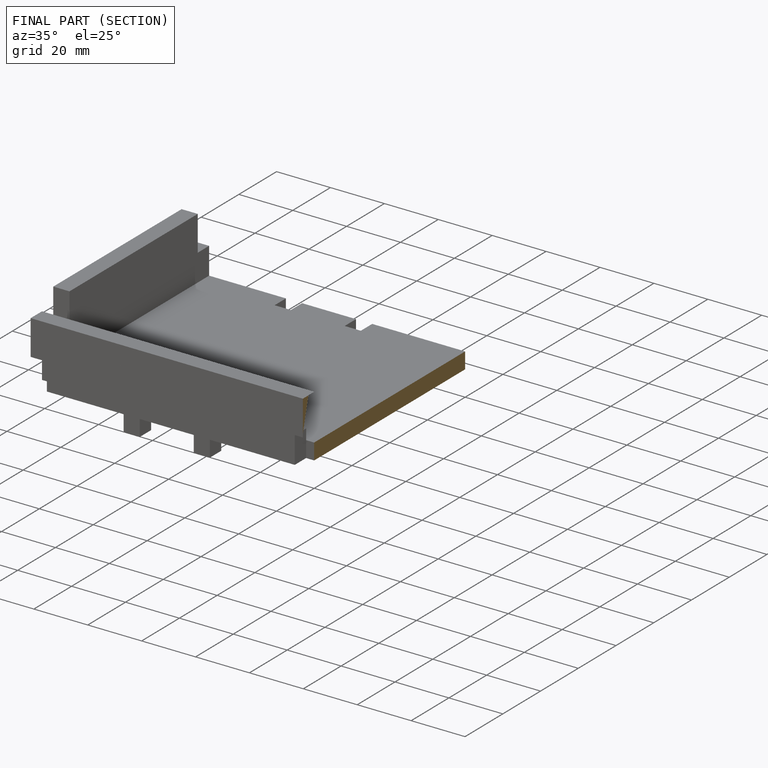
[diagram: finished part — half-section view (interior)]
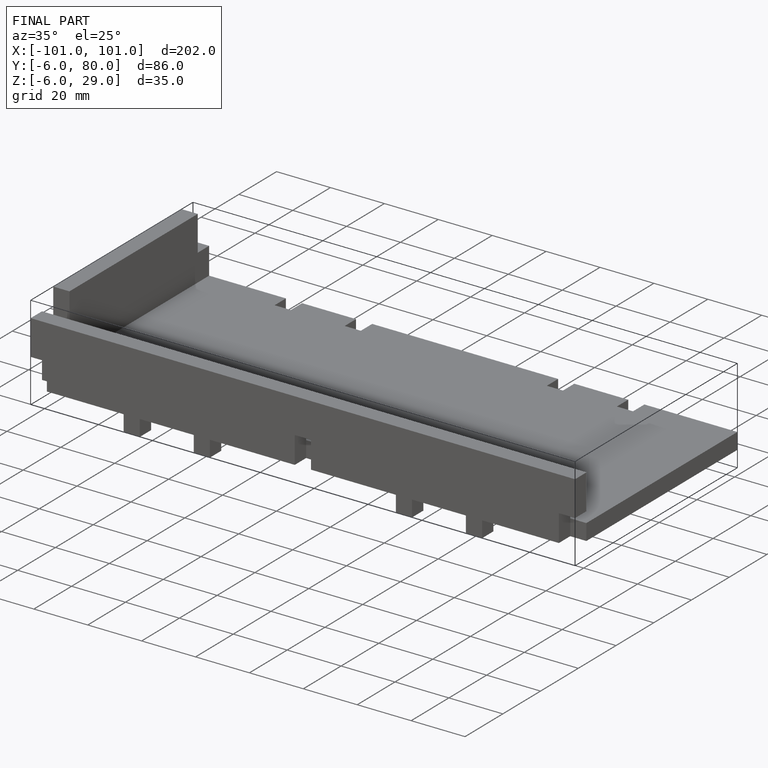
[diagram: finished part — iso view with bounding-box wireframe]
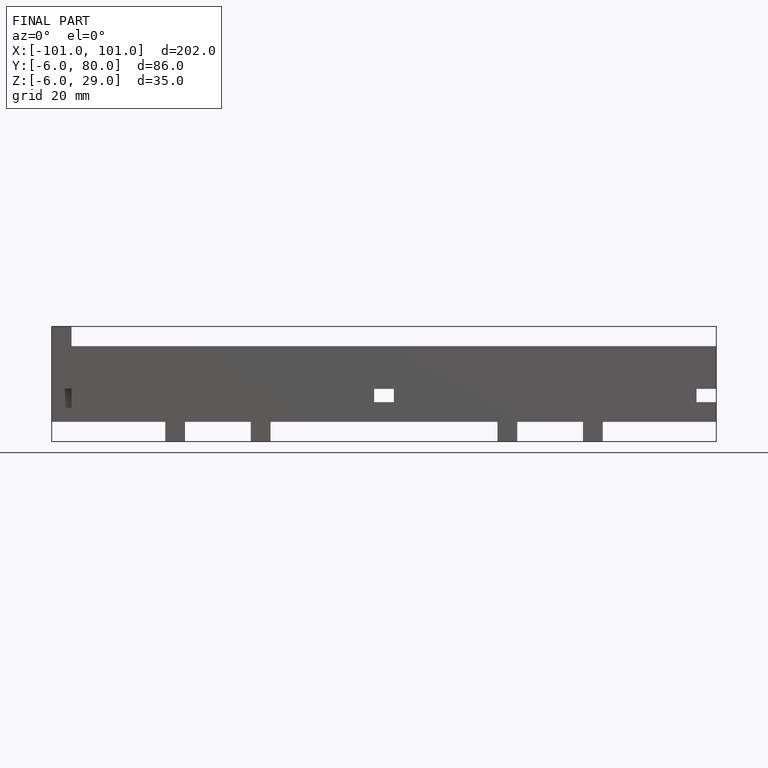
[diagram: finished part — front view with bounding-box wireframe]
